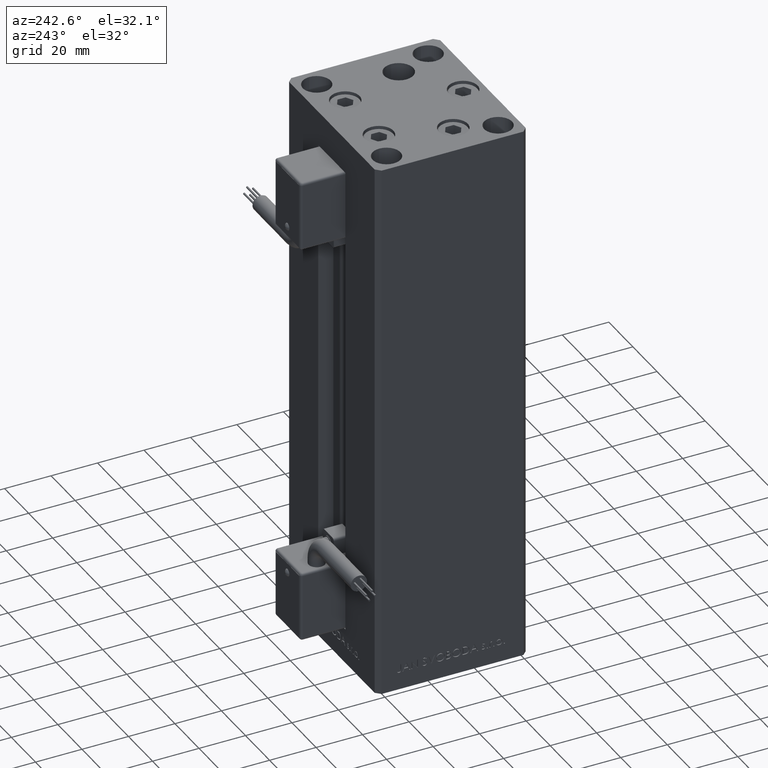
[diagram: clean part render]
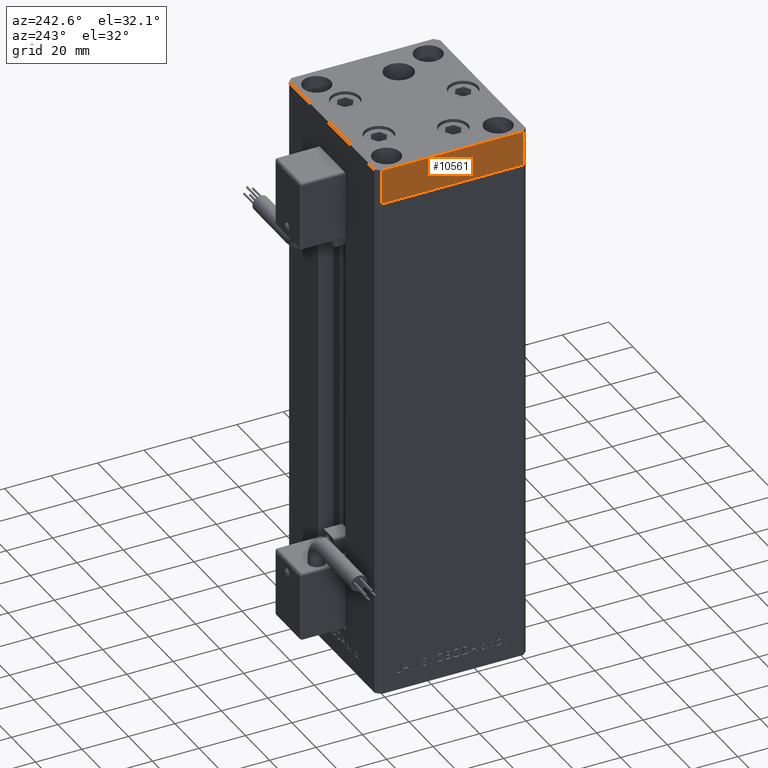
[diagram: same view with one face highlighted and labeled with its STEP entity id]
A machine part, auxiliary view. The second image highlights one B-rep face of the part: STEP entity #10561.
In plain terms, the highlighted planar face has unit normal (-1, -0, 0).
Its self-contained STEP definition (entity closure, byte-faithful):
#488 = PLANE ( 'NONE',  #8145 ) ;
#2308 = CARTESIAN_POINT ( 'NONE',  ( -37.49999999999998579, -30.50000000000001421, 0.000000000000000000 ) ) ;
#3526 = LINE ( 'NONE', #6697, #3668 ) ;
#3668 = VECTOR ( 'NONE', #50900, 1000.000000000000000 ) ;
#4232 = VECTOR ( 'NONE', #27156, 1000.000000000000000 ) ;
#4552 = VERTEX_POINT ( 'NONE', #9204 ) ;
#4594 = VERTEX_POINT ( 'NONE', #2308 ) ;
#5501 = CARTESIAN_POINT ( 'NONE',  ( -37.49999999999998579, -30.50000000000001421, -15.00000000000000000 ) ) ;
#6697 = CARTESIAN_POINT ( 'NONE',  ( -37.50000000000001421, 30.49999999999998579, -15.00000000000000000 ) ) ;
#7649 = CARTESIAN_POINT ( 'NONE',  ( -37.50000000000001421, 30.49999999999998579, 0.000000000000000000 ) ) ;
#8145 = AXIS2_PLACEMENT_3D ( 'NONE', #36198, #20309, #36454 ) ;
#9204 = CARTESIAN_POINT ( 'NONE',  ( -37.50000000000001421, 30.49999999999998579, -15.00000000000000000 ) ) ;
#10561 = ADVANCED_FACE ( 'NONE', ( #40176 ), #488, .T. ) ;
#11254 = CARTESIAN_POINT ( 'NONE',  ( -37.50000000000001421, 30.49999999999998579, 0.000000000000000000 ) ) ;
#13168 = ORIENTED_EDGE ( 'NONE', *, *, #25272, .F. ) ;
#15293 = ORIENTED_EDGE ( 'NONE', *, *, #37712, .T. ) ;
#19571 = ORIENTED_EDGE ( 'NONE', *, *, #25890, .F. ) ;
#20309 = DIRECTION ( 'NONE',  ( -1.000000000000000000, -4.550094363217855288E-16, 0.000000000000000000 ) ) ;
#20898 = CARTESIAN_POINT ( 'NONE',  ( -37.49999999999998579, -30.50000000000001421, -15.00000000000000000 ) ) ;
#22467 = VERTEX_POINT ( 'NONE', #11254 ) ;
#25272 = EDGE_CURVE ( 'NONE', #4552, #22467, #40126, .T. ) ;
#25379 = VECTOR ( 'NONE', #44443, 1000.000000000000000 ) ;
#25890 = EDGE_CURVE ( 'NONE', #22467, #4594, #32245, .T. ) ;
#27156 = DIRECTION ( 'NONE',  ( 0.000000000000000000, 0.000000000000000000, 1.000000000000000000 ) ) ;
#27363 = ORIENTED_EDGE ( 'NONE', *, *, #36169, .T. ) ;
#32245 = LINE ( 'NONE', #7649, #25379 ) ;
#33497 = VERTEX_POINT ( 'NONE', #5501 ) ;
#33828 = LINE ( 'NONE', #20898, #42613 ) ;
#35892 = CARTESIAN_POINT ( 'NONE',  ( -37.50000000000001421, 30.49999999999998579, -15.00000000000000000 ) ) ;
#36169 = EDGE_CURVE ( 'NONE', #4552, #33497, #3526, .T. ) ;
#36198 = CARTESIAN_POINT ( 'NONE',  ( -37.50000000000001421, 30.49999999999998579, -15.00000000000000000 ) ) ;
#36454 = DIRECTION ( 'NONE',  ( 4.550094363217855288E-16, -1.000000000000000000, 0.000000000000000000 ) ) ;
#37038 = DIRECTION ( 'NONE',  ( 0.000000000000000000, 0.000000000000000000, 1.000000000000000000 ) ) ;
#37712 = EDGE_CURVE ( 'NONE', #33497, #4594, #33828, .T. ) ;
#40126 = LINE ( 'NONE', #35892, #4232 ) ;
#40176 = FACE_OUTER_BOUND ( 'NONE', #49392, .T. ) ;
#42613 = VECTOR ( 'NONE', #37038, 1000.000000000000000 ) ;
#44443 = DIRECTION ( 'NONE',  ( 4.550094363217855288E-16, -1.000000000000000000, 0.000000000000000000 ) ) ;
#49392 = EDGE_LOOP ( 'NONE', ( #19571, #13168, #27363, #15293 ) ) ;
#50900 = DIRECTION ( 'NONE',  ( 4.550094363217855288E-16, -1.000000000000000000, 0.000000000000000000 ) ) ;